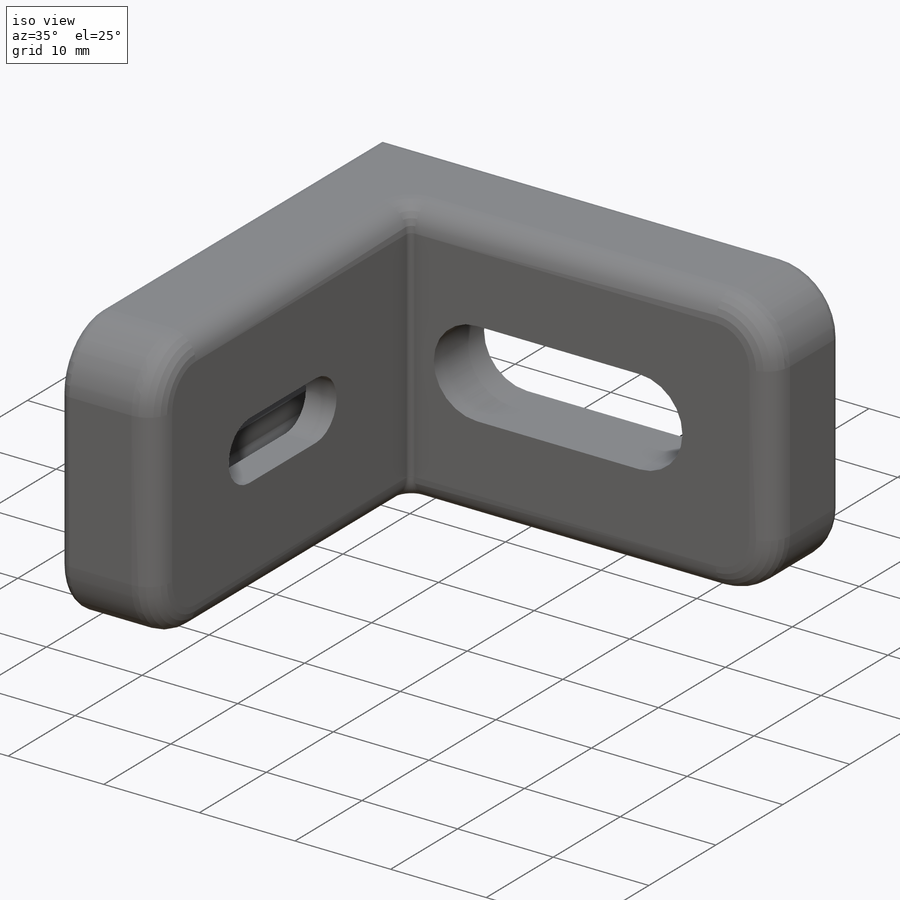
[diagram: iso view]
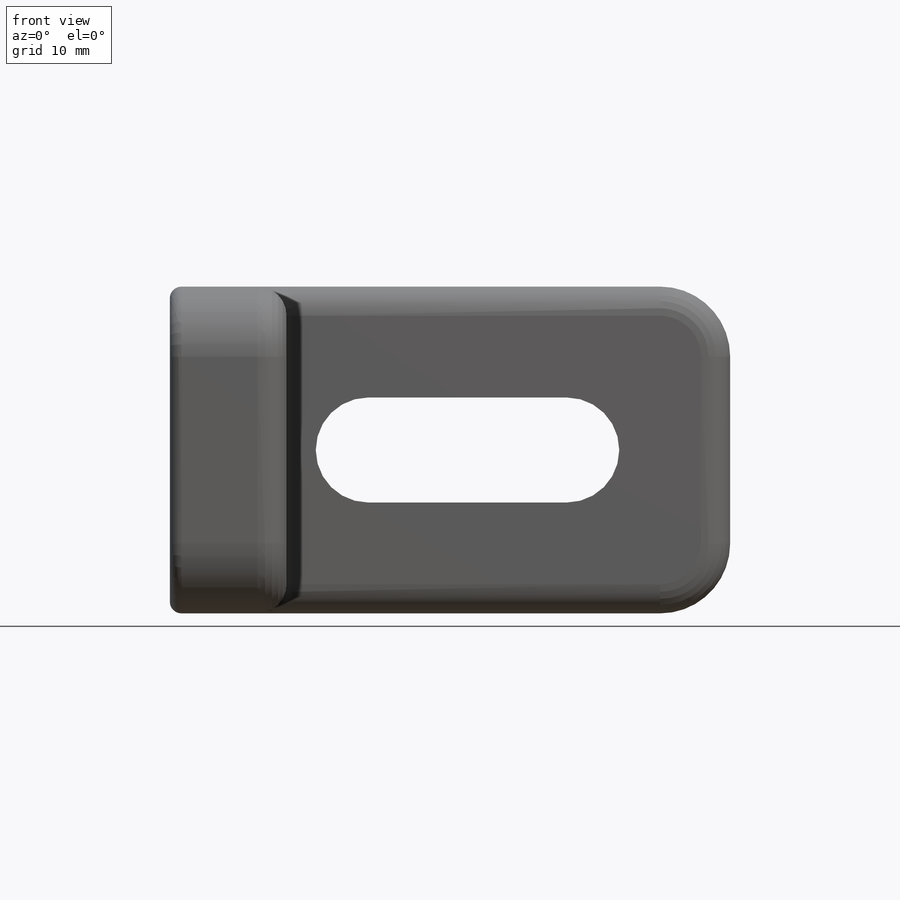
[diagram: front view]
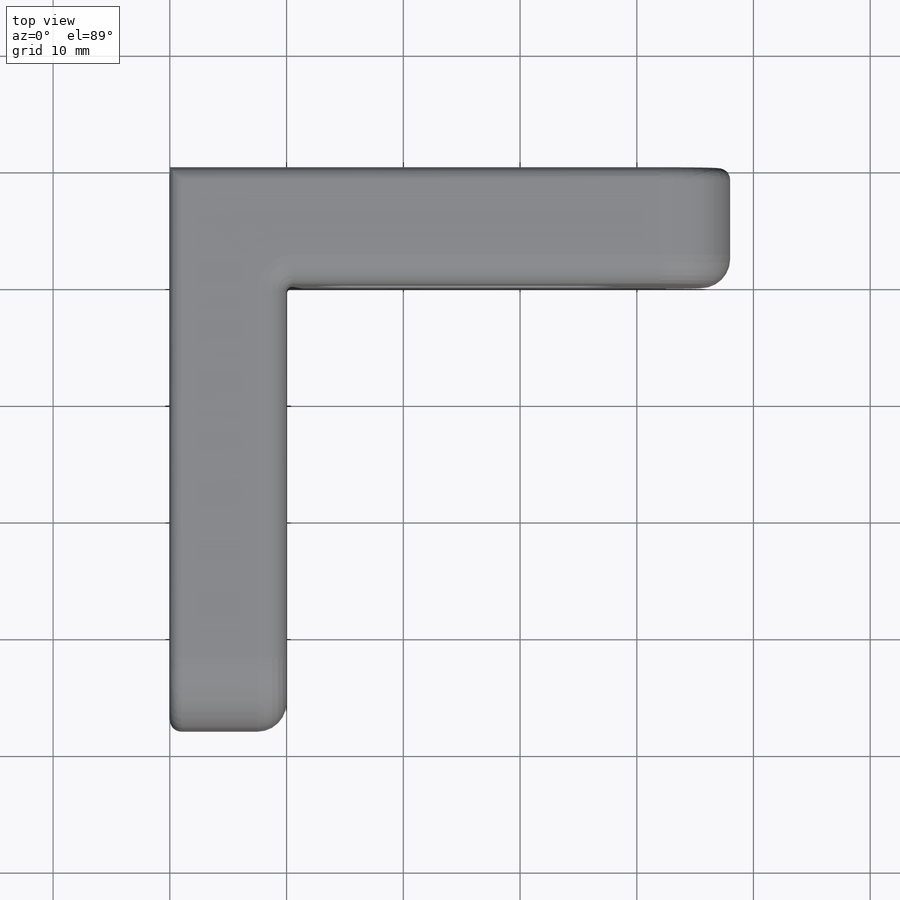
[diagram: top view]
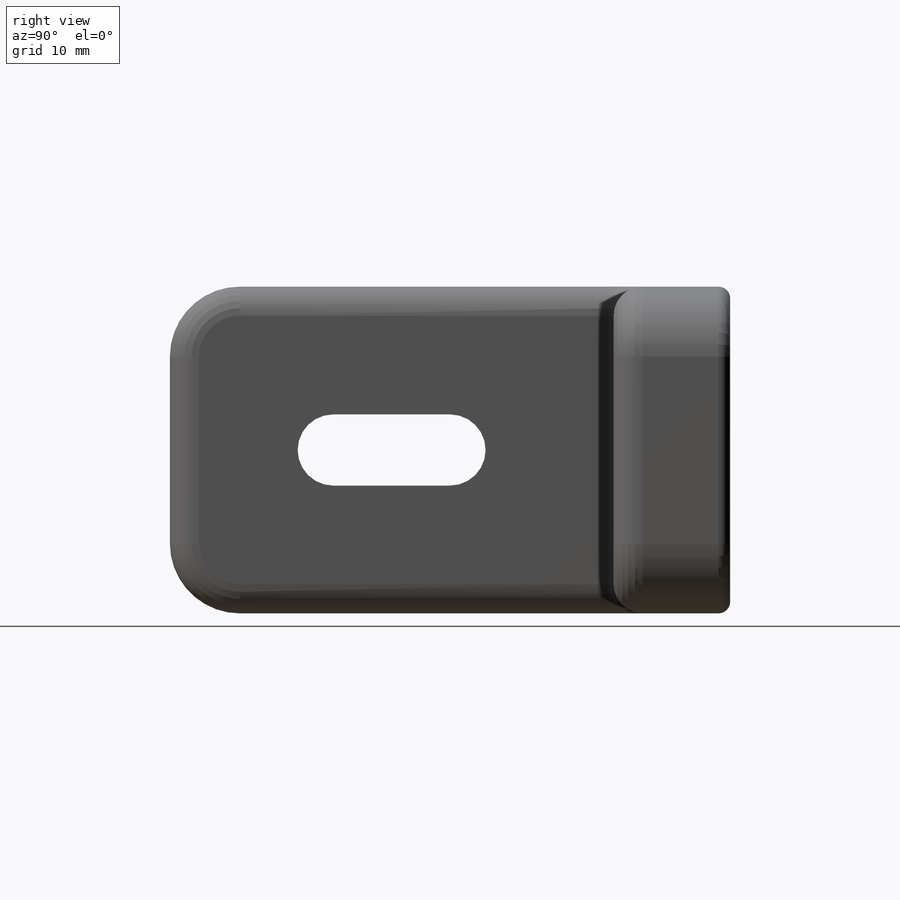
[diagram: right view]
SOLIDWORKS PART (.sldprt)
format: sldprt  version: not decoded by parser v0  size: 307,200 bytes
history: native  units: mm
features: sketch x7, cut_extrude x6, fillet x4, material x1, plane x1, extrude x1 (+13 scaffold rows collapsed)
feature tree (33):
  scaffold x13  (default folders/planes/origin — collapsed)
  material  "Material <not specified>"
  plane  "Plane1"  Offset=28mm
  sketch  "Sketch1"
  extrude  "Boss-Extrude1"  Depth=28mm
  sketch  "Sketch2"
  cut_extrude  "Cut-Extrude1"  Depth=28mm
  sketch  "Sketch3"
  cut_extrude  "Cut-Extrude2"  Depth=2.5mm
  sketch  "Sketch4"
  cut_extrude  "Cut-Extrude3"  Depth=38.5mm
  sketch  "Sketch5"
  cut_extrude  "Cut-Extrude4"  Depth=3.2mm
  sketch  "Sketch6"
  cut_extrude  "Cut-Extrude5"  Depth=3.2mm
  sketch  "Sketch7"
  cut_extrude  "Cut-Extrude6"  Depth=7.5mm
  fillet  "Fillet1"  Radius=6mm
  fillet  "Fillet2"  Radius=0.5mm
  fillet  "Fillet3"  Radius=1mm
  fillet  "Fillet4"  Radius=2.5mm
decode coverage: 11 of 18 modeling features carry decoded parameters
note: suppression state not decoded; provenance and decode notes live in map.json
